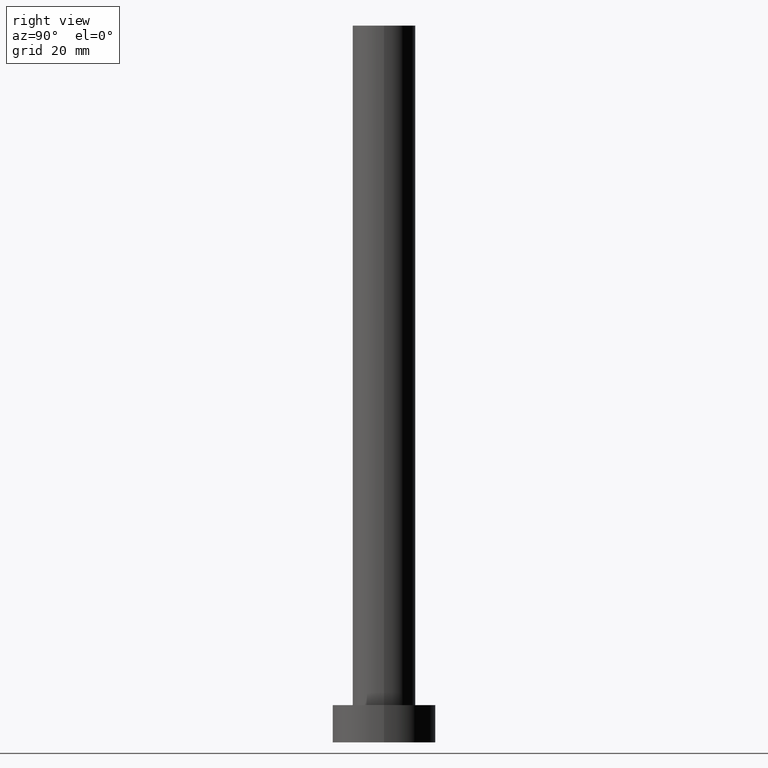
[diagram: clean part render]
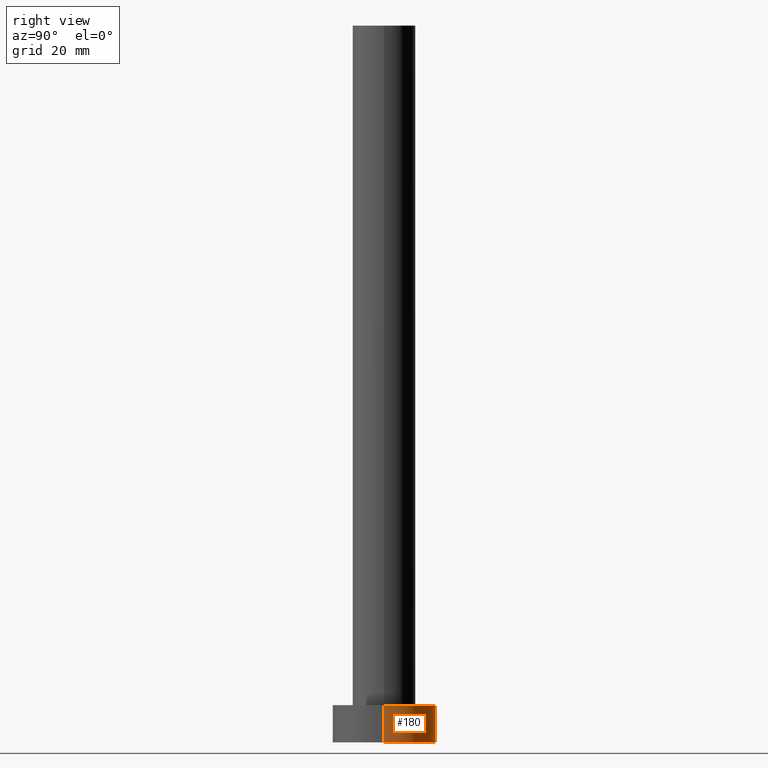
[diagram: same view with one face highlighted and labeled with its STEP entity id]
A machine part, right view. The second image highlights one B-rep face of the part: STEP entity #180.
In plain terms, the highlighted cylindrical surface (partial cylindrical patch) has radius 9 mm, axis along (-0, -0, -1).
Its self-contained STEP definition (entity closure, byte-faithful):
#4 = DIRECTION ( 'NONE',  ( 0.000000000000000000, 0.000000000000000000, 1.000000000000000000 ) ) ;
#5 = DIRECTION ( 'NONE',  ( -0.000000000000000000, -0.000000000000000000, -1.000000000000000000 ) ) ;
#9 = EDGE_CURVE ( 'NONE', #146, #51, #177, .T. ) ;
#11 = VERTEX_POINT ( 'NONE', #221 ) ;
#14 = DIRECTION ( 'NONE',  ( -0.000000000000000000, -0.000000000000000000, -1.000000000000000000 ) ) ;
#15 = VECTOR ( 'NONE', #97, 1000.000000000000000 ) ;
#18 = CARTESIAN_POINT ( 'NONE',  ( 0.000000000000000000, 0.000000000000000000, 0.000000000000000000 ) ) ;
#24 = AXIS2_PLACEMENT_3D ( 'NONE', #184, #223, #63 ) ;
#31 = EDGE_LOOP ( 'NONE', ( #168, #152, #236, #105 ) ) ;
#51 = VERTEX_POINT ( 'NONE', #74 ) ;
#63 = DIRECTION ( 'NONE',  ( 1.000000000000000000, 0.000000000000000000, 0.000000000000000000 ) ) ;
#74 = CARTESIAN_POINT ( 'NONE',  ( -9.000000000000000000, 0.000000000000000000, 0.000000000000000000 ) ) ;
#79 = CARTESIAN_POINT ( 'NONE',  ( -9.000000000000000000, 0.000000000000000000, 6.500000000000000000 ) ) ;
#97 = DIRECTION ( 'NONE',  ( -0.000000000000000000, -0.000000000000000000, -1.000000000000000000 ) ) ;
#103 = EDGE_CURVE ( 'NONE', #11, #146, #110, .T. ) ;
#105 = ORIENTED_EDGE ( 'NONE', *, *, #119, .F. ) ;
#110 = LINE ( 'NONE', #241, #242 ) ;
#115 = DIRECTION ( 'NONE',  ( 1.000000000000000000, 0.000000000000000000, 0.000000000000000000 ) ) ;
#118 = LINE ( 'NONE', #79, #15 ) ;
#119 = EDGE_CURVE ( 'NONE', #190, #51, #118, .T. ) ;
#123 = EDGE_CURVE ( 'NONE', #11, #190, #170, .T. ) ;
#128 = CARTESIAN_POINT ( 'NONE',  ( -9.000000000000000000, 0.000000000000000000, 6.500000000000000000 ) ) ;
#146 = VERTEX_POINT ( 'NONE', #208 ) ;
#152 = ORIENTED_EDGE ( 'NONE', *, *, #103, .T. ) ;
#168 = ORIENTED_EDGE ( 'NONE', *, *, #123, .F. ) ;
#170 = CIRCLE ( 'NONE', #24, 9.000000000000000000 ) ;
#174 = DIRECTION ( 'NONE',  ( -1.000000000000000000, 0.000000000000000000, 0.000000000000000000 ) ) ;
#176 = CYLINDRICAL_SURFACE ( 'NONE', #227, 9.000000000000000000 ) ;
#177 = CIRCLE ( 'NONE', #202, 9.000000000000000000 ) ;
#180 = ADVANCED_FACE ( 'NONE', ( #216 ), #176, .T. ) ;
#184 = CARTESIAN_POINT ( 'NONE',  ( 0.000000000000000000, 0.000000000000000000, 6.500000000000000000 ) ) ;
#190 = VERTEX_POINT ( 'NONE', #128 ) ;
#199 = CARTESIAN_POINT ( 'NONE',  ( 0.000000000000000000, 0.000000000000000000, 6.500000000000000000 ) ) ;
#202 = AXIS2_PLACEMENT_3D ( 'NONE', #18, #4, #115 ) ;
#208 = CARTESIAN_POINT ( 'NONE',  ( 9.000000000000000000, 1.102182119232617517E-15, 0.000000000000000000 ) ) ;
#216 = FACE_OUTER_BOUND ( 'NONE', #31, .T. ) ;
#221 = CARTESIAN_POINT ( 'NONE',  ( 9.000000000000000000, 1.102182119232617517E-15, 6.500000000000000000 ) ) ;
#223 = DIRECTION ( 'NONE',  ( 0.000000000000000000, 0.000000000000000000, 1.000000000000000000 ) ) ;
#227 = AXIS2_PLACEMENT_3D ( 'NONE', #199, #14, #174 ) ;
#236 = ORIENTED_EDGE ( 'NONE', *, *, #9, .T. ) ;
#241 = CARTESIAN_POINT ( 'NONE',  ( 9.000000000000000000, 1.102182119232617517E-15, 6.500000000000000000 ) ) ;
#242 = VECTOR ( 'NONE', #5, 1000.000000000000000 ) ;